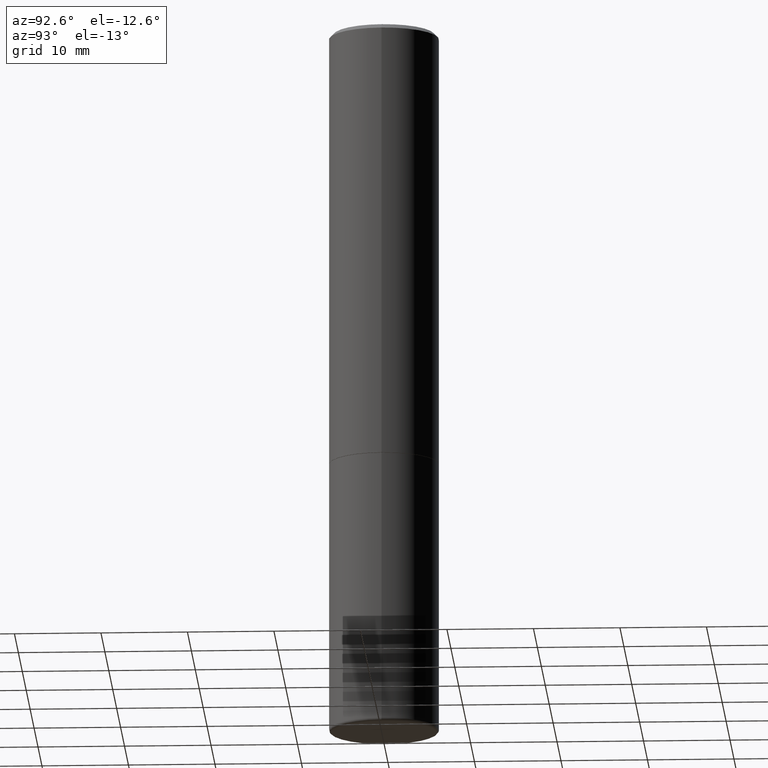
[diagram: clean part render]
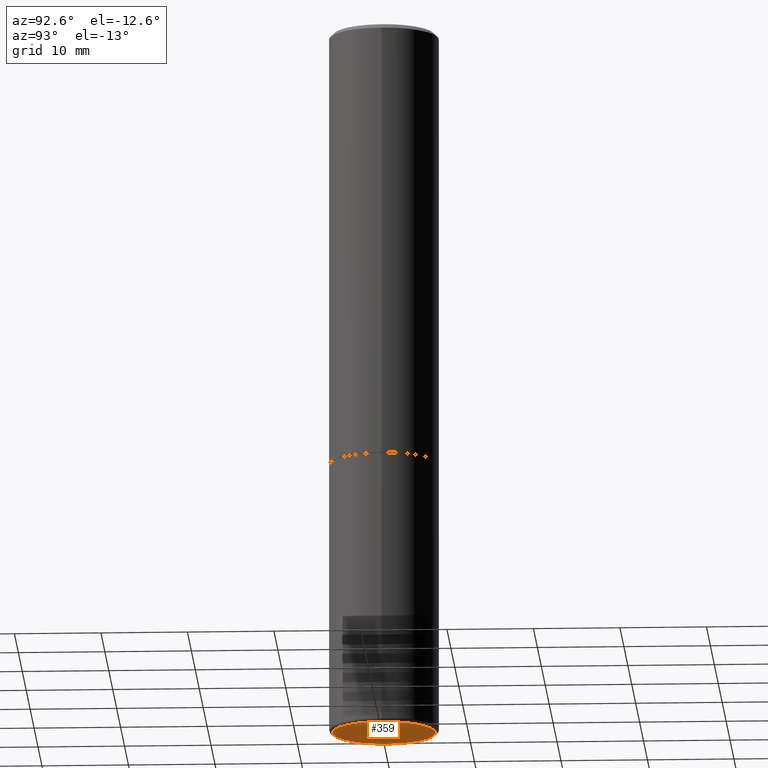
[diagram: same view with one face highlighted and labeled with its STEP entity id]
A machine part, auxiliary view. The second image highlights one B-rep face of the part: STEP entity #359.
In plain terms, the highlighted planar face has unit normal (0, -0, -1).
Its self-contained STEP definition (entity closure, byte-faithful):
#12 = DIRECTION ( 'NONE',  ( -1.000000000000000000, 6.982962677686265922E-15, -4.876176775795935793E-29 ) ) ;
#17 = ORIENTED_EDGE ( 'NONE', *, *, #30, .F. ) ;
#20 = AXIS2_PLACEMENT_3D ( 'NONE', #181, #113, #55 ) ;
#30 = EDGE_CURVE ( 'NONE', #392, #240, #298, .T. ) ;
#55 = DIRECTION ( 'NONE',  ( 1.000000000000000000, -6.982962677686270655E-15, 0.000000000000000000 ) ) ;
#72 = ORIENTED_EDGE ( 'NONE', *, *, #127, .F. ) ;
#73 = CARTESIAN_POINT ( 'NONE',  ( 2.671324608371790310E-29, -1.890348965286478456E-14, -3.250000000000000444 ) ) ;
#75 = DIRECTION ( 'NONE',  ( 2.438088387897960049E-29, -3.491481338843145188E-15, -1.000000000000000000 ) ) ;
#113 = DIRECTION ( 'NONE',  ( -2.445468806185136597E-29, 3.491481338843145583E-15, 1.000000000000000000 ) ) ;
#127 = EDGE_CURVE ( 'NONE', #240, #392, #236, .T. ) ;
#129 = CARTESIAN_POINT ( 'NONE',  ( 7.947773620101696182E-29, -1.134731435124022600E-14, -3.250000000000000444 ) ) ;
#149 = AXIS2_PLACEMENT_3D ( 'NONE', #73, #75, #12 ) ;
#181 = CARTESIAN_POINT ( 'NONE',  ( 7.947773620101696182E-29, -1.134731435124022600E-14, -3.250000000000000444 ) ) ;
#204 = FACE_OUTER_BOUND ( 'NONE', #297, .T. ) ;
#209 = CARTESIAN_POINT ( 'NONE',  ( 0.2350000000000000144, -1.298831058049649931E-14, -3.250000000000000444 ) ) ;
#226 = DIRECTION ( 'NONE',  ( 1.000000000000000000, -6.982962677686270655E-15, 0.000000000000000000 ) ) ;
#236 = CIRCLE ( 'NONE', #328, 0.2350000000000000144 ) ;
#240 = VERTEX_POINT ( 'NONE', #209 ) ;
#297 = EDGE_LOOP ( 'NONE', ( #72, #17 ) ) ;
#298 = CIRCLE ( 'NONE', #20, 0.2350000000000000144 ) ;
#303 = PLANE ( 'NONE',  #149 ) ;
#328 = AXIS2_PLACEMENT_3D ( 'NONE', #129, #391, #226 ) ;
#359 = ADVANCED_FACE ( 'NONE', ( #204 ), #303, .T. ) ;
#391 = DIRECTION ( 'NONE',  ( -2.445468806185136597E-29, 3.491481338843145583E-15, 1.000000000000000000 ) ) ;
#392 = VERTEX_POINT ( 'NONE', #395 ) ;
#395 = CARTESIAN_POINT ( 'NONE',  ( -0.2350000000000000144, -9.598062106980653841E-15, -3.250000000000000444 ) ) ;